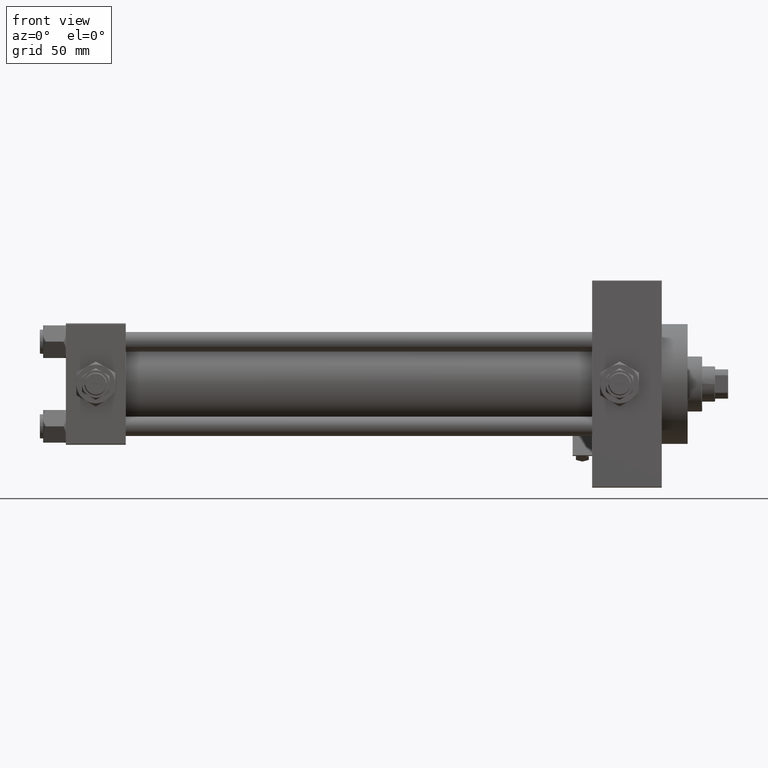
[diagram: clean part render]
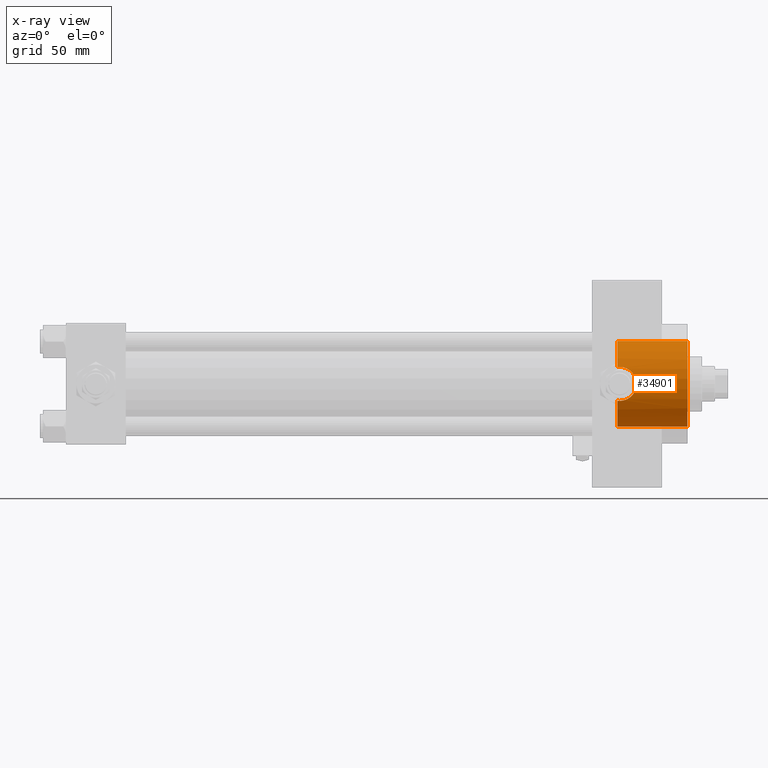
[diagram: x-ray — body ghosted, one internal face saturated and labeled with its STEP entity id]
A machine part, front view, then the same camera in x-ray: the body is ghosted and one INTERNAL B-rep face — a face not visible from any outside direction — is saturated and labeled: STEP entity #34901.
In plain terms, the highlighted cylindrical surface (partial cylindrical patch) has radius 26.5 mm, axis along (1, 0, 0).
Its self-contained STEP definition (entity closure, byte-faithful):
#132 = VERTEX_POINT ( 'NONE', #6720 ) ;
#366 = CARTESIAN_POINT ( 'NONE',  ( 341.9999999999999432, -24.33967132070604933, -10.47999999999998444 ) ) ;
#612 = CARTESIAN_POINT ( 'NONE',  ( 350.8904987776701887, -25.91192981801192019, 5.559420023815752288 ) ) ;
#859 = CARTESIAN_POINT ( 'NONE',  ( 343.3786097457405049, -24.36915941385104034, -10.41231194222669032 ) ) ;
#1107 = CARTESIAN_POINT ( 'NONE',  ( 345.4024368383432488, -24.56844862672226881, -9.935854460437958835 ) ) ;
#3037 = DIRECTION ( 'NONE',  ( 1.000000000000000000, 0.000000000000000000, 0.000000000000000000 ) ) ;
#3352 = CARTESIAN_POINT ( 'NONE',  ( 383.9999999999999432, 0.000000000000000000, -26.50000000000000355 ) ) ;
#3911 = CARTESIAN_POINT ( 'NONE',  ( 340.7399999999999523, 0.000000000000000000, 0.000000000000000000 ) ) ;
#4674 = CARTESIAN_POINT ( 'NONE',  ( 352.3935590552673034, -26.46591511510091621, -1.387412420731360285 ) ) ;
#5168 = CARTESIAN_POINT ( 'NONE',  ( 347.5577538920437632, -24.96463143003450824, -8.891425016462832787 ) ) ;
#6425 = CARTESIAN_POINT ( 'NONE',  ( 343.3839948142214098, -24.36973996242158336, 10.41091756284552261 ) ) ;
#6630 = EDGE_CURVE ( 'NONE', #37300, #10557, #44403, .T. ) ;
#6720 = CARTESIAN_POINT ( 'NONE',  ( 383.9999999999999432, 3.245314017740486554E-15, 26.50000000000000355 ) ) ;
#7279 = DIRECTION ( 'NONE',  ( 1.000000000000000000, -0.000000000000000000, -0.000000000000000000 ) ) ;
#7620 = B_SPLINE_CURVE_WITH_KNOTS ( 'NONE', 3,
 ( #25947, #30780, #41702, #10948 ),
 .UNSPECIFIED., .F., .F.,
 ( 4, 4 ),
 ( 0.03437190755806017461, 0.03561776921873229668 ),
 .UNSPECIFIED. ) ;
#8264 = CARTESIAN_POINT ( 'NONE',  ( 350.3132647636414276, -25.71940794313460188, -6.390292897823909080 ) ) ;
#8487 = CARTESIAN_POINT ( 'NONE',  ( 340.7399999999999523, -24.37226292324946542, -10.40398000767012121 ) ) ;
#8509 = CARTESIAN_POINT ( 'NONE',  ( 346.6659000583121042, -24.77500862834707007, 9.408993987884889165 ) ) ;
#8758 = CARTESIAN_POINT ( 'NONE',  ( 346.6580558779860439, -24.77960996754317691, -9.394203453174506890 ) ) ;
#8997 = CARTESIAN_POINT ( 'NONE',  ( 349.8850942087586304, -25.58093385762821725, 6.936447548980003042 ) ) ;
#10557 = VERTEX_POINT ( 'NONE', #36388 ) ;
#10948 = CARTESIAN_POINT ( 'NONE',  ( 340.7399999999999523, -24.37226292324946542, 10.40398000767012476 ) ) ;
#12051 = VECTOR ( 'NONE', #45334, 1000.000000000000000 ) ;
#12321 = CARTESIAN_POINT ( 'NONE',  ( 351.9191483855534557, -26.28308039691836484, 3.400110870430098409 ) ) ;
#12560 = CARTESIAN_POINT ( 'NONE',  ( 352.2075249541714470, -26.39335609204157862, 2.399236127628251225 ) ) ;
#12808 = CARTESIAN_POINT ( 'NONE',  ( 349.6501220615578518, -25.51256335955730137, -7.170912732211419893 ) ) ;
#13051 = CARTESIAN_POINT ( 'NONE',  ( 351.0816778311290136, -25.97633853132262516, -5.273786452924778878 ) ) ;
#13225 = EDGE_CURVE ( 'NONE', #21629, #132, #33631, .T. ) ;
#13542 = AXIS2_PLACEMENT_3D ( 'NONE', #33551, #3037, #45248 ) ;
#13834 = EDGE_CURVE ( 'NONE', #21629, #24987, #16890, .T. ) ;
#14337 = DIRECTION ( 'NONE',  ( 1.000000000000000000, -0.000000000000000000, -0.000000000000000000 ) ) ;
#14467 = ORIENTED_EDGE ( 'NONE', *, *, #15396, .T. ) ;
#15396 = EDGE_CURVE ( 'NONE', #132, #18550, #32394, .T. ) ;
#15883 = CARTESIAN_POINT ( 'NONE',  ( 348.1110651716821280, -25.09360970262139645, 8.520611273842973787 ) ) ;
#15995 = ORIENTED_EDGE ( 'NONE', *, *, #6630, .F. ) ;
#16597 = CARTESIAN_POINT ( 'NONE',  ( 341.9999999999999432, -24.33967132070604933, -10.47999999999998444 ) ) ;
#16617 = CARTESIAN_POINT ( 'NONE',  ( 352.4798633477533940, -26.49994595790487750, 0.6963870350870609016 ) ) ;
#16869 = CARTESIAN_POINT ( 'NONE',  ( 342.6904960883776994, -24.33967132070605288, -10.47999999999998622 ) ) ;
#16890 = CIRCLE ( 'NONE', #29894, 26.50000000000000355 ) ;
#18550 = VERTEX_POINT ( 'NONE', #3352 ) ;
#19489 = LINE ( 'NONE', #34723, #31885 ) ;
#19546 = DIRECTION ( 'NONE',  ( 1.000000000000000000, 0.000000000000000000, 0.000000000000000000 ) ) ;
#19719 = CARTESIAN_POINT ( 'NONE',  ( 352.4114040688938303, -26.47265107862981282, 1.382412405478201434 ) ) ;
#19934 = CARTESIAN_POINT ( 'NONE',  ( 341.1611364518797131, -24.35049096341793273, -10.45498279016080190 ) ) ;
#19958 = CARTESIAN_POINT ( 'NONE',  ( 351.8022638174866188, -26.23907308479209632, 3.723318718764354163 ) ) ;
#20414 = DIRECTION ( 'NONE',  ( 0.000000000000000000, 0.000000000000000000, -1.000000000000000000 ) ) ;
#21176 = CARTESIAN_POINT ( 'NONE',  ( 341.9999999999999432, -24.33967132070604578, 10.47999999999998799 ) ) ;
#21284 = VERTEX_POINT ( 'NONE', #37739 ) ;
#21629 = VERTEX_POINT ( 'NONE', #31267 ) ;
#22657 = ORIENTED_EDGE ( 'NONE', *, *, #48154, .T. ) ;
#23138 = ORIENTED_EDGE ( 'NONE', *, *, #34166, .T. ) ;
#23246 = FACE_OUTER_BOUND ( 'NONE', #47991, .T. ) ;
#23728 = DIRECTION ( 'NONE',  ( 1.000000000000000000, 0.000000000000000000, 0.000000000000000000 ) ) ;
#23774 = CARTESIAN_POINT ( 'NONE',  ( 347.2635990777562256, -24.90054338428141634, -9.068796382691610702 ) ) ;
#23975 = DIRECTION ( 'NONE',  ( 0.000000000000000000, 0.000000000000000000, -1.000000000000000000 ) ) ;
#24019 = CARTESIAN_POINT ( 'NONE',  ( 352.3421836049515719, -26.44572692659851043, -1.728475508984246733 ) ) ;
#24267 = CARTESIAN_POINT ( 'NONE',  ( 345.7173844672075802, -24.61993612039163892, 9.804529592362715817 ) ) ;
#24506 = CARTESIAN_POINT ( 'NONE',  ( 344.7286532048193521, -24.48994387988091148, 10.12445329003759831 ) ) ;
#24747 = CARTESIAN_POINT ( 'NONE',  ( 352.1391112229688360, -26.36675217432885532, -2.738755341944234090 ) ) ;
#24970 = ORIENTED_EDGE ( 'NONE', *, *, #26491, .F. ) ;
#24987 = VERTEX_POINT ( 'NONE', #47040 ) ;
#25947 = CARTESIAN_POINT ( 'NONE',  ( 341.9999999999999432, -24.33967132070604578, 10.47999999999998799 ) ) ;
#26491 = EDGE_CURVE ( 'NONE', #10557, #18550, #19489, .T. ) ;
#27294 = CARTESIAN_POINT ( 'NONE',  ( 383.9999999999999432, 0.000000000000000000, 0.000000000000000000 ) ) ;
#28328 = CARTESIAN_POINT ( 'NONE',  ( 350.3165002292778354, -25.71874665637611912, 6.413821170274212058 ) ) ;
#29057 = CARTESIAN_POINT ( 'NONE',  ( 342.6982936874238135, -24.33967132070605288, 10.47999999999998799 ) ) ;
#29894 = AXIS2_PLACEMENT_3D ( 'NONE', #42679, #19546, #46237 ) ;
#30322 = AXIS2_PLACEMENT_3D ( 'NONE', #3911, #14337, #20414 ) ;
#30691 = ORIENTED_EDGE ( 'NONE', *, *, #13225, .T. ) ;
#30780 = CARTESIAN_POINT ( 'NONE',  ( 341.5796744023296583, -24.33967132070604933, 10.47999999999998799 ) ) ;
#31267 = CARTESIAN_POINT ( 'NONE',  ( 340.7399999999999523, 3.245314017740486554E-15, 26.50000000000000355 ) ) ;
#31400 = CARTESIAN_POINT ( 'NONE',  ( 348.9147507852791250, -25.30155050139243400, 7.882476147205608186 ) ) ;
#31652 = CARTESIAN_POINT ( 'NONE',  ( 352.4626037639856690, -26.49310609510639836, -0.6963515910539230802 ) ) ;
#31885 = VECTOR ( 'NONE', #7279, 1000.000000000000000 ) ;
#32138 = CARTESIAN_POINT ( 'NONE',  ( 351.0679913760331488, -25.97354752128884314, 5.264851845784575879 ) ) ;
#32384 = CARTESIAN_POINT ( 'NONE',  ( 344.7461877943152899, -24.48462605612511567, -10.13781324604278566 ) ) ;
#32394 = CIRCLE ( 'NONE', #34830, 26.50000000000000355 ) ;
#33036 = ORIENTED_EDGE ( 'NONE', *, *, #13834, .F. ) ;
#33551 = CARTESIAN_POINT ( 'NONE',  ( 340.7399999999999523, 0.000000000000000000, 0.000000000000000000 ) ) ;
#33592 = VERTEX_POINT ( 'NONE', #41475 ) ;
#33631 = LINE ( 'NONE', #37955, #12051 ) ;
#34117 = B_SPLINE_CURVE_WITH_KNOTS ( 'NONE', 3,
 ( #8487, #19934, #43314, #16597 ),
 .UNSPECIFIED., .F., .F.,
 ( 4, 4 ),
 ( 0.000000000000000000, 0.001255586767787742180 ),
 .UNSPECIFIED. ) ;
#34166 = EDGE_CURVE ( 'NONE', #37300, #21284, #34117, .T. ) ;
#34723 = CARTESIAN_POINT ( 'NONE',  ( 340.7399999999999523, 0.000000000000000000, -26.50000000000000355 ) ) ;
#34830 = AXIS2_PLACEMENT_3D ( 'NONE', #27294, #23728, #23975 ) ;
#34901 = ADVANCED_FACE ( 'NONE', ( #23246 ), #38739, .F. ) ;
#35206 = CARTESIAN_POINT ( 'NONE',  ( 351.3916535229814144, -26.08830885934473898, 4.663043711798779967 ) ) ;
#35452 = CARTESIAN_POINT ( 'NONE',  ( 351.5385175848664403, -26.14168889184969657, 4.354785931857528603 ) ) ;
#35697 = CARTESIAN_POINT ( 'NONE',  ( 351.4057128516255943, -26.09263577897064224, -4.673612418766433407 ) ) ;
#36177 = CARTESIAN_POINT ( 'NONE',  ( 346.3489237122697659, -24.72318467201153425, -9.541179571695417749 ) ) ;
#36388 = CARTESIAN_POINT ( 'NONE',  ( 340.7399999999999523, 0.000000000000000000, -26.50000000000000355 ) ) ;
#37300 = VERTEX_POINT ( 'NONE', #42074 ) ;
#37739 = CARTESIAN_POINT ( 'NONE',  ( 341.9999999999999432, -24.33967132070604933, -10.47999999999998444 ) ) ;
#37745 = ORIENTED_EDGE ( 'NONE', *, *, #48585, .T. ) ;
#37955 = CARTESIAN_POINT ( 'NONE',  ( 340.7399999999999523, 3.245314017740486554E-15, 26.50000000000000355 ) ) ;
#38739 = CYLINDRICAL_SURFACE ( 'NONE', #30322, 26.50000000000000355 ) ;
#39277 = CARTESIAN_POINT ( 'NONE',  ( 349.8811664359166684, -25.58300917221411197, -6.916171625962134861 ) ) ;
#39520 = CARTESIAN_POINT ( 'NONE',  ( 348.3864792908362915, -25.16230905708522059, 8.316254619809559046 ) ) ;
#39763 = CARTESIAN_POINT ( 'NONE',  ( 345.3904700717596370, -24.57248644795726378, 9.922439993611758879 ) ) ;
#40006 = CARTESIAN_POINT ( 'NONE',  ( 344.3947302122626866, -24.45488967133338676, 10.20851256290626097 ) ) ;
#40250 = CARTESIAN_POINT ( 'NONE',  ( 352.4800680225664564, -26.50002690099941560, -0.3451042088078207781 ) ) ;
#41475 = CARTESIAN_POINT ( 'NONE',  ( 341.9999999999999432, -24.33967132070604578, 10.47999999999998799 ) ) ;
#41702 = CARTESIAN_POINT ( 'NONE',  ( 341.1580741051582208, -24.35064928096445058, 10.45461191700780645 ) ) ;
#42074 = CARTESIAN_POINT ( 'NONE',  ( 340.7399999999999523, -24.37226292324946542, -10.40398000767012121 ) ) ;
#42679 = CARTESIAN_POINT ( 'NONE',  ( 340.7399999999999523, 0.000000000000000000, 0.000000000000000000 ) ) ;
#43314 = CARTESIAN_POINT ( 'NONE',  ( 341.5811236364005481, -24.33967132070604933, -10.47999999999998444 ) ) ;
#43340 = CARTESIAN_POINT ( 'NONE',  ( 349.1663633815065850, -25.37171319999175978, 7.654298772871981349 ) ) ;
#43398 = B_SPLINE_CURVE_WITH_KNOTS ( 'NONE', 3,
 ( #366, #16869, #859, #32384, #1107, #36177, #8758, #23774, #5168, #43828, #47154, #12808, #39277, #8264, #47897, #13051, #35697, #47402, #24747, #24019, #4674, #31652, #40250, #16617, #19719, #12560, #43581, #12321, #19958, #35452, #35206, #32138, #612, #28328, #8997, #43340, #31400, #39520, #15883, #46906, #8509, #24267, #39763, #24506, #40006, #6425, #29057, #21176 ),
 .UNSPECIFIED., .F., .F.,
 ( 4, 2, 2, 2, 2, 2, 2, 2, 2, 2, 2, 2, 2, 2, 2, 2, 2, 2, 2, 2, 2, 2, 2, 4 ),
 ( 0.001255586767787742180, 0.003325356817179899935, 0.005395126866572057256, 0.006430011891268136784, 0.007464896915964218047, 0.009534666965356375368, 0.01056955199005239592, 0.01160443701474841993, 0.01367420706414046103, 0.01574397711353250559, 0.01677886213822850706, 0.01781374716292451199, 0.01988351721231651839, 0.02091840223701253720, 0.02195328726170855949, 0.02298817228640457830, 0.02402305731110059711, 0.02609282736049263821, 0.02712771238518860498, 0.02816259740988456828, 0.03023236745927649488, 0.03126725248397245471, 0.03230213750866841455, 0.03437190755806017461 ),
 .UNSPECIFIED. ) ;
#43581 = CARTESIAN_POINT ( 'NONE',  ( 352.1219222710723784, -26.36027543327035971, 2.738055544399103702 ) ) ;
#43828 = CARTESIAN_POINT ( 'NONE',  ( 348.4049404352973056, -25.16229795609820030, -8.322848467437522046 ) ) ;
#44403 = CIRCLE ( 'NONE', #13542, 26.50000000000000355 ) ;
#45248 = DIRECTION ( 'NONE',  ( 0.000000000000000000, 0.000000000000000000, -1.000000000000000000 ) ) ;
#45334 = DIRECTION ( 'NONE',  ( 1.000000000000000000, -0.000000000000000000, -0.000000000000000000 ) ) ;
#46237 = DIRECTION ( 'NONE',  ( 0.000000000000000000, 0.000000000000000000, -1.000000000000000000 ) ) ;
#46906 = CARTESIAN_POINT ( 'NONE',  ( 347.2636119660474492, -24.89625137302611790, 9.087734872939149611 ) ) ;
#47040 = CARTESIAN_POINT ( 'NONE',  ( 340.7399999999999523, -24.37226292324946542, 10.40398000767012476 ) ) ;
#47154 = CARTESIAN_POINT ( 'NONE',  ( 348.9276451403628130, -25.30216499957184695, -7.893159106980490947 ) ) ;
#47402 = CARTESIAN_POINT ( 'NONE',  ( 351.9389570606564348, -26.28956209411557765, -3.395175965175869059 ) ) ;
#47897 = CARTESIAN_POINT ( 'NONE',  ( 350.5155153844949609, -25.78569419426080600, -6.118106053452849302 ) ) ;
#47991 = EDGE_LOOP ( 'NONE', ( #33036, #30691, #14467, #24970, #15995, #23138, #22657, #37745 ) ) ;
#48154 = EDGE_CURVE ( 'NONE', #21284, #33592, #43398, .T. ) ;
#48585 = EDGE_CURVE ( 'NONE', #33592, #24987, #7620, .T. ) ;